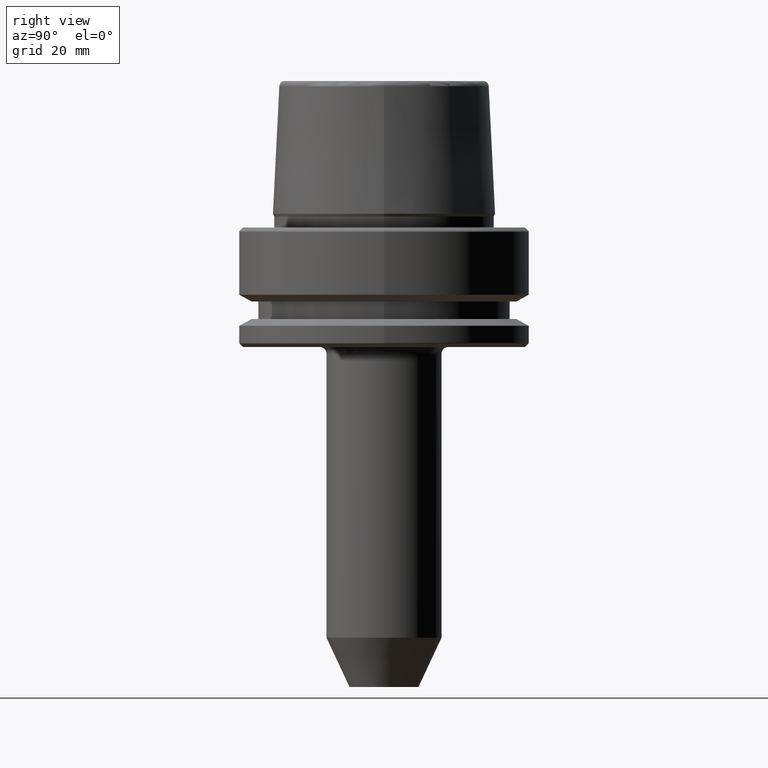
[diagram: clean part render]
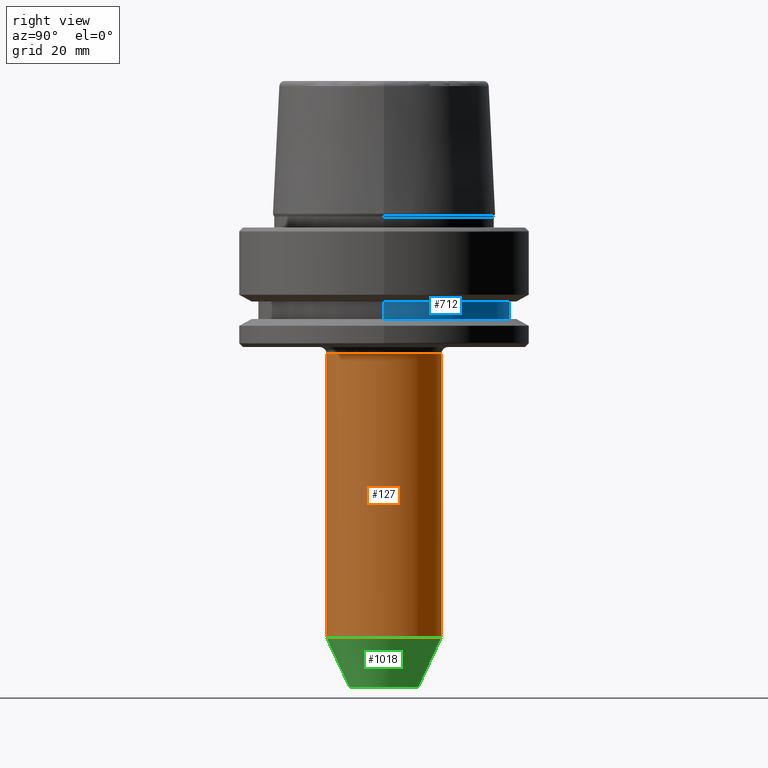
[diagram: same view with three faces highlighted in distinct colors, each labeled with its STEP entity id]
A machine part, right view with three faces highlighted in distinct colors.
Their STEP definitions:

[orange] entity #127 — the highlighted cylindrical surface (partial cylindrical patch) has radius 12.5 mm, axis along (-0, 0, -1).
#36 = VERTEX_POINT ( 'NONE', #226 ) ;
#80 = AXIS2_PLACEMENT_3D ( 'NONE', #1002, #513, #92 ) ;
#81 = VECTOR ( 'NONE', #227, 1000.000000000000000 ) ;
#92 = DIRECTION ( 'NONE',  ( 1.000000000000000000, 0.0000000000000000000, 0.0000000000000000000 ) ) ;
#127 = ADVANCED_FACE ( 'NONE', ( #494 ), #437, .T. ) ;
#129 = ORIENTED_EDGE ( 'NONE', *, *, #200, .F. ) ;
#133 = CARTESIAN_POINT ( 'NONE',  ( 1.530808498934191300E-015, -12.49999999999999500, -100.0000000000000000 ) ) ;
#154 = AXIS2_PLACEMENT_3D ( 'NONE', #486, #770, #312 ) ;
#158 = VERTEX_POINT ( 'NONE', #1266 ) ;
#178 = EDGE_CURVE ( 'NONE', #36, #481, #718, .T. ) ;
#200 = EDGE_CURVE ( 'NONE', #158, #369, #603, .T. ) ;
#219 = ORIENTED_EDGE ( 'NONE', *, *, #682, .T. ) ;
#226 = CARTESIAN_POINT ( 'NONE',  ( 0.0000000000000000000, 12.49999999999999800, -27.50000000000001100 ) ) ;
#227 = DIRECTION ( 'NONE',  ( -0.0000000000000000000, 5.792248374345589000E-017, -1.000000000000000000 ) ) ;
#263 = VERTEX_POINT ( 'NONE', #566 ) ;
#312 = DIRECTION ( 'NONE',  ( 0.0000000000000000000, 1.000000000000000000, 0.0000000000000000000 ) ) ;
#348 = CARTESIAN_POINT ( 'NONE',  ( 0.0000000000000000000, -12.49999999999999300, -89.27746539745214700 ) ) ;
#351 = CARTESIAN_POINT ( 'NONE',  ( 12.49999999999999800, 8.688372561518441400E-017, -27.50000000000001100 ) ) ;
#356 = VECTOR ( 'NONE', #427, 1000.000000000000000 ) ;
#369 = VERTEX_POINT ( 'NONE', #348 ) ;
#397 = ORIENTED_EDGE ( 'NONE', *, *, #178, .T. ) ;
#423 = AXIS2_PLACEMENT_3D ( 'NONE', #432, #1133, #528 ) ;
#427 = DIRECTION ( 'NONE',  ( -0.0000000000000000000, 5.792248374345589000E-017, -1.000000000000000000 ) ) ;
#432 = CARTESIAN_POINT ( 'NONE',  ( 0.0000000000000000000, 8.688372561518441400E-017, -27.50000000000001100 ) ) ;
#436 = CIRCLE ( 'NONE', #423, 12.49999999999999800 ) ;
#437 = CYLINDRICAL_SURFACE ( 'NONE', #1230, 12.49999999999999800 ) ;
#481 = VERTEX_POINT ( 'NONE', #351 ) ;
#486 = CARTESIAN_POINT ( 'NONE',  ( 0.0000000000000000000, 3.665187960811014000E-015, -89.27746539745214700 ) ) ;
#494 = FACE_OUTER_BOUND ( 'NONE', #1092, .T. ) ;
#513 = DIRECTION ( 'NONE',  ( 0.0000000000000000000, 0.0000000000000000000, -1.000000000000000000 ) ) ;
#528 = DIRECTION ( 'NONE',  ( 1.000000000000000000, 0.0000000000000000000, 0.0000000000000000000 ) ) ;
#566 = CARTESIAN_POINT ( 'NONE',  ( 1.530808498934191700E-015, -12.50000000000000000, -27.50000000000001100 ) ) ;
#571 = EDGE_CURVE ( 'NONE', #36, #158, #1042, .T. ) ;
#603 = CIRCLE ( 'NONE', #154, 12.49999999999999600 ) ;
#647 = EDGE_CURVE ( 'NONE', #263, #369, #1247, .T. ) ;
#679 = CARTESIAN_POINT ( 'NONE',  ( 0.0000000000000000000, 4.286263797015735700E-015, -100.0000000000000000 ) ) ;
#682 = EDGE_CURVE ( 'NONE', #481, #263, #436, .T. ) ;
#696 = DIRECTION ( 'NONE',  ( -0.0000000000000000000, 5.792248374345589000E-017, -1.000000000000000000 ) ) ;
#718 = CIRCLE ( 'NONE', #80, 12.49999999999999800 ) ;
#770 = DIRECTION ( 'NONE',  ( -0.0000000000000000000, 5.792248374345589000E-017, -1.000000000000000000 ) ) ;
#820 = CARTESIAN_POINT ( 'NONE',  ( 0.0000000000000000000, 12.50000000000000200, -100.0000000000000000 ) ) ;
#875 = ORIENTED_EDGE ( 'NONE', *, *, #647, .T. ) ;
#1002 = CARTESIAN_POINT ( 'NONE',  ( 0.0000000000000000000, 8.688372561518441400E-017, -27.50000000000001100 ) ) ;
#1009 = ORIENTED_EDGE ( 'NONE', *, *, #571, .F. ) ;
#1042 = LINE ( 'NONE', #820, #356 ) ;
#1092 = EDGE_LOOP ( 'NONE', ( #397, #219, #875, #129, #1009 ) ) ;
#1133 = DIRECTION ( 'NONE',  ( 0.0000000000000000000, 0.0000000000000000000, -1.000000000000000000 ) ) ;
#1173 = DIRECTION ( 'NONE',  ( 0.0000000000000000000, 1.000000000000000000, 0.0000000000000000000 ) ) ;
#1230 = AXIS2_PLACEMENT_3D ( 'NONE', #679, #696, #1173 ) ;
#1247 = LINE ( 'NONE', #133, #81 ) ;
#1266 = CARTESIAN_POINT ( 'NONE',  ( 1.530808498934191100E-015, 12.50000000000000000, -89.27746539745214700 ) ) ;

[blue] entity #712 — the highlighted cylindrical surface (partial cylindrical patch) has radius 27.5 mm, axis along (-0, -0, 1).
#24 = ORIENTED_EDGE ( 'NONE', *, *, #1151, .F. ) ;
#32 = CARTESIAN_POINT ( 'NONE',  ( -27.49999999999999600, 3.367778697655220900E-015, -16.10000000000001600 ) ) ;
#97 = VERTEX_POINT ( 'NONE', #1197 ) ;
#146 = EDGE_CURVE ( 'NONE', #714, #97, #901, .T. ) ;
#155 = CARTESIAN_POINT ( 'NONE',  ( 0.0000000000000000000, 0.0000000000000000000, -19.90000000000001600 ) ) ;
#170 = EDGE_CURVE ( 'NONE', #1105, #1241, #921, .T. ) ;
#187 = FACE_OUTER_BOUND ( 'NONE', #557, .T. ) ;
#245 = DIRECTION ( 'NONE',  ( 1.000000000000000000, 0.0000000000000000000, 0.0000000000000000000 ) ) ;
#292 = VECTOR ( 'NONE', #484, 1000.000000000000000 ) ;
#301 = AXIS2_PLACEMENT_3D ( 'NONE', #155, #844, #245 ) ;
#314 = CIRCLE ( 'NONE', #516, 27.49999999999999600 ) ;
#353 = AXIS2_PLACEMENT_3D ( 'NONE', #1136, #435, #1221 ) ;
#386 = CARTESIAN_POINT ( 'NONE',  ( 27.49999999999999600, 0.0000000000000000000, 78.96908074195309300 ) ) ;
#404 = CARTESIAN_POINT ( 'NONE',  ( 0.0000000000000000000, 0.0000000000000000000, -16.10000000000001600 ) ) ;
#435 = DIRECTION ( 'NONE',  ( -0.0000000000000000000, -0.0000000000000000000, 1.000000000000000000 ) ) ;
#484 = DIRECTION ( 'NONE',  ( -0.0000000000000000000, -0.0000000000000000000, 1.000000000000000000 ) ) ;
#503 = DIRECTION ( 'NONE',  ( 1.000000000000000000, 0.0000000000000000000, 0.0000000000000000000 ) ) ;
#506 = VECTOR ( 'NONE', #630, 1000.000000000000000 ) ;
#516 = AXIS2_PLACEMENT_3D ( 'NONE', #404, #1111, #503 ) ;
#557 = EDGE_LOOP ( 'NONE', ( #626, #1007, #24, #1150 ) ) ;
#595 = CARTESIAN_POINT ( 'NONE',  ( -27.49999999999999600, 3.367778697655220900E-015, -19.90000000000001600 ) ) ;
#626 = ORIENTED_EDGE ( 'NONE', *, *, #757, .T. ) ;
#630 = DIRECTION ( 'NONE',  ( -0.0000000000000000000, -0.0000000000000000000, 1.000000000000000000 ) ) ;
#712 = ADVANCED_FACE ( 'NONE', ( #187 ), #1008, .T. ) ;
#714 = VERTEX_POINT ( 'NONE', #740 ) ;
#740 = CARTESIAN_POINT ( 'NONE',  ( 27.49999999999999600, 0.0000000000000000000, -19.90000000000001600 ) ) ;
#757 = EDGE_CURVE ( 'NONE', #714, #1105, #843, .T. ) ;
#843 = CIRCLE ( 'NONE', #301, 27.49999999999999600 ) ;
#844 = DIRECTION ( 'NONE',  ( -0.0000000000000000000, -0.0000000000000000000, 1.000000000000000000 ) ) ;
#901 = LINE ( 'NONE', #386, #292 ) ;
#921 = LINE ( 'NONE', #1006, #506 ) ;
#1006 = CARTESIAN_POINT ( 'NONE',  ( -27.49999999999999600, 3.367778697655220900E-015, 78.96908074195309300 ) ) ;
#1007 = ORIENTED_EDGE ( 'NONE', *, *, #170, .T. ) ;
#1008 = CYLINDRICAL_SURFACE ( 'NONE', #353, 27.49999999999999600 ) ;
#1105 = VERTEX_POINT ( 'NONE', #595 ) ;
#1111 = DIRECTION ( 'NONE',  ( -0.0000000000000000000, -0.0000000000000000000, 1.000000000000000000 ) ) ;
#1136 = CARTESIAN_POINT ( 'NONE',  ( 0.0000000000000000000, 0.0000000000000000000, 78.96908074195309300 ) ) ;
#1150 = ORIENTED_EDGE ( 'NONE', *, *, #146, .F. ) ;
#1151 = EDGE_CURVE ( 'NONE', #97, #1241, #314, .T. ) ;
#1197 = CARTESIAN_POINT ( 'NONE',  ( 27.49999999999999600, 0.0000000000000000000, -16.10000000000001600 ) ) ;
#1221 = DIRECTION ( 'NONE',  ( 1.000000000000000000, 0.0000000000000000000, 0.0000000000000000000 ) ) ;
#1241 = VERTEX_POINT ( 'NONE', #32 ) ;

[green] entity #1018 — the highlighted conical surface has half-angle 25 deg.
#46 = CARTESIAN_POINT ( 'NONE',  ( 1.224646799147352900E-015, 7.500000000000000000, -100.0000000000000000 ) ) ;
#151 = ORIENTED_EDGE ( 'NONE', *, *, #893, .F. ) ;
#154 = AXIS2_PLACEMENT_3D ( 'NONE', #486, #770, #312 ) ;
#158 = VERTEX_POINT ( 'NONE', #1266 ) ;
#165 = ORIENTED_EDGE ( 'NONE', *, *, #1214, .F. ) ;
#200 = EDGE_CURVE ( 'NONE', #158, #369, #603, .T. ) ;
#266 = EDGE_CURVE ( 'NONE', #758, #158, #440, .T. ) ;
#273 = DIRECTION ( 'NONE',  ( 5.175581015019632900E-017, 0.4226182617406972800, 0.9063077870366510500 ) ) ;
#312 = DIRECTION ( 'NONE',  ( 0.0000000000000000000, 1.000000000000000000, 0.0000000000000000000 ) ) ;
#322 = CARTESIAN_POINT ( 'NONE',  ( 0.0000000000000000000, 4.286263797015735700E-015, -100.0000000000000000 ) ) ;
#348 = CARTESIAN_POINT ( 'NONE',  ( 0.0000000000000000000, -12.49999999999999300, -89.27746539745214700 ) ) ;
#369 = VERTEX_POINT ( 'NONE', #348 ) ;
#417 = EDGE_LOOP ( 'NONE', ( #165, #916, #917, #151 ) ) ;
#425 = DIRECTION ( 'NONE',  ( 0.0000000000000000000, 1.000000000000000000, 0.0000000000000000000 ) ) ;
#440 = LINE ( 'NONE', #1185, #1031 ) ;
#486 = CARTESIAN_POINT ( 'NONE',  ( 0.0000000000000000000, 3.665187960811014000E-015, -89.27746539745214700 ) ) ;
#580 = DIRECTION ( 'NONE',  ( 0.0000000000000000000, -1.000000000000000000, 0.0000000000000000000 ) ) ;
#603 = CIRCLE ( 'NONE', #154, 12.49999999999999600 ) ;
#758 = VERTEX_POINT ( 'NONE', #46 ) ;
#770 = DIRECTION ( 'NONE',  ( -0.0000000000000000000, 5.792248374345589000E-017, -1.000000000000000000 ) ) ;
#773 = FACE_OUTER_BOUND ( 'NONE', #417, .T. ) ;
#873 = CONICAL_SURFACE ( 'NONE', #1183, 7.499999999999995600, 0.4363323129985800500 ) ;
#890 = CARTESIAN_POINT ( 'NONE',  ( 0.0000000000000000000, -7.499999999999991100, -100.0000000000000000 ) ) ;
#893 = EDGE_CURVE ( 'NONE', #1063, #369, #1125, .T. ) ;
#916 = ORIENTED_EDGE ( 'NONE', *, *, #266, .T. ) ;
#917 = ORIENTED_EDGE ( 'NONE', *, *, #200, .T. ) ;
#954 = CARTESIAN_POINT ( 'NONE',  ( 0.0000000000000000000, -7.499999999999991100, -100.0000000000000000 ) ) ;
#976 = CIRCLE ( 'NONE', #1123, 7.499999999999995600 ) ;
#1018 = ADVANCED_FACE ( 'NONE', ( #773 ), #873, .T. ) ;
#1023 = DIRECTION ( 'NONE',  ( -0.0000000000000000000, 5.792248374345589000E-017, -1.000000000000000000 ) ) ;
#1031 = VECTOR ( 'NONE', #273, 1000.000000000000100 ) ;
#1063 = VERTEX_POINT ( 'NONE', #890 ) ;
#1073 = VECTOR ( 'NONE', #1159, 1000.000000000000000 ) ;
#1123 = AXIS2_PLACEMENT_3D ( 'NONE', #322, #1023, #425 ) ;
#1125 = LINE ( 'NONE', #954, #1073 ) ;
#1159 = DIRECTION ( 'NONE',  ( 0.0000000000000000000, -0.4226182617406973300, 0.9063077870366509400 ) ) ;
#1176 = DIRECTION ( 'NONE',  ( 0.0000000000000000000, -5.792248374345589000E-017, 1.000000000000000000 ) ) ;
#1183 = AXIS2_PLACEMENT_3D ( 'NONE', #1276, #1176, #580 ) ;
#1185 = CARTESIAN_POINT ( 'NONE',  ( 9.184850993605144000E-016, 7.500000000000000000, -100.0000000000000000 ) ) ;
#1214 = EDGE_CURVE ( 'NONE', #758, #1063, #976, .T. ) ;
#1266 = CARTESIAN_POINT ( 'NONE',  ( 1.530808498934191100E-015, 12.50000000000000000, -89.27746539745214700 ) ) ;
#1276 = CARTESIAN_POINT ( 'NONE',  ( 0.0000000000000000000, 4.286263797015735700E-015, -100.0000000000000000 ) ) ;